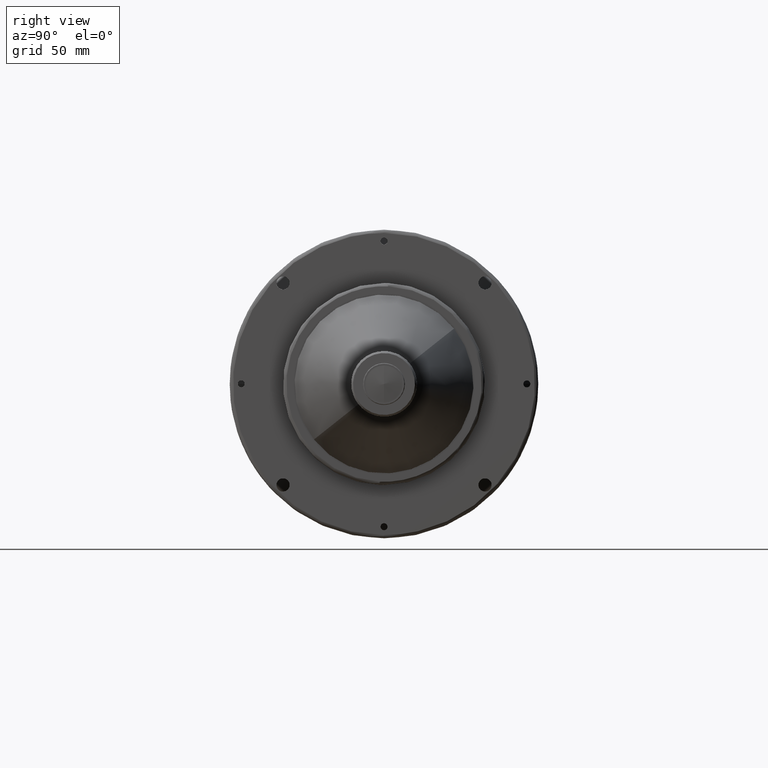
[diagram: clean part render]
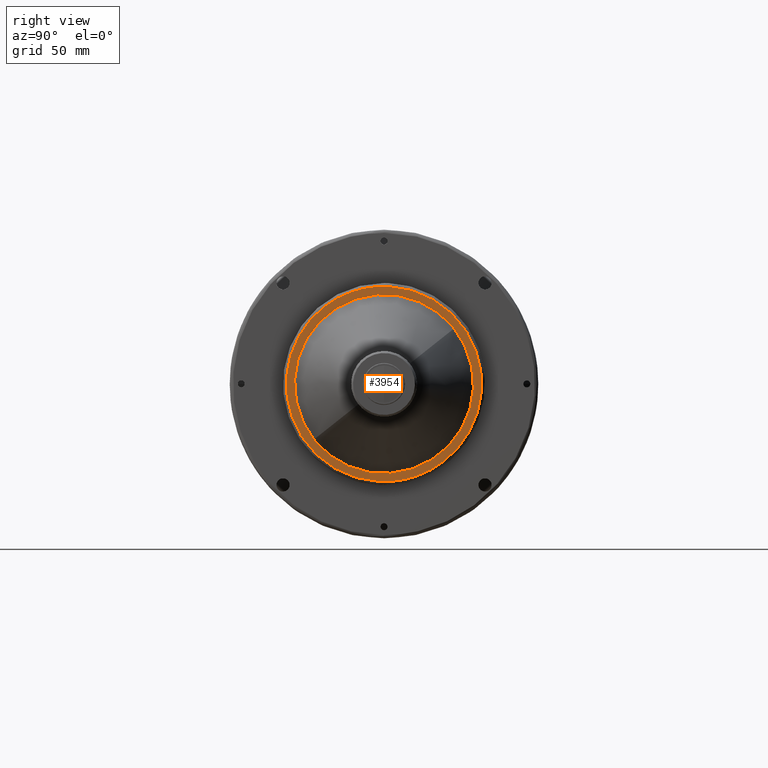
[diagram: same view with one face highlighted and labeled with its STEP entity id]
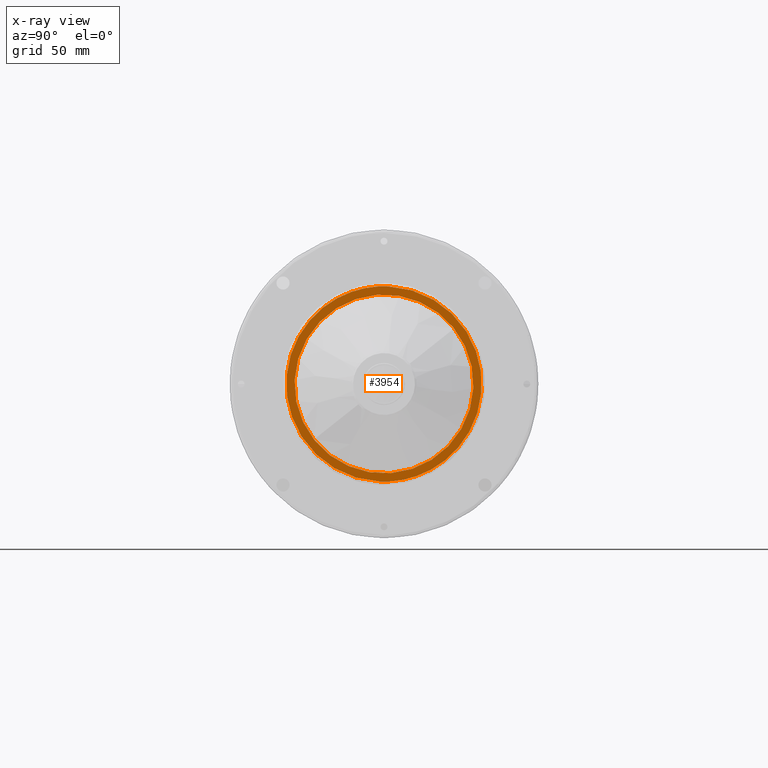
[diagram: x-ray of the same camera — body ghosted, the highlighted face saturated]
A machine part, right view. The second image highlights one B-rep face of the part: STEP entity #3954.
The next image is the same camera in x-ray: the body ghosted, the highlighted face saturated — about 0% of this face is hidden behind the body in this view.
In plain terms, the highlighted planar face has unit normal (-1, 0, 0).
Its self-contained STEP definition (entity closure, byte-faithful):
#320 = CARTESIAN_POINT ( 'NONE',  ( 173.0000000001910500, -2.632057328316807200, -59.44175529797291100 ) ) ;
#471 = CARTESIAN_POINT ( 'NONE',  ( 173.0000000001910800, 2.632057328316807200, 59.44175529797291100 ) ) ;
#521 = FACE_OUTER_BOUND ( 'NONE', #3306, .T. ) ;
#556 = DIRECTION ( 'NONE',  ( 0.0000000000000000000, -0.9990210976306547200, 0.04423625762699399200 ) ) ;
#977 = CARTESIAN_POINT ( 'NONE',  ( 173.0000000001911100, 2.632057328316807200, 59.44175529797291100 ) ) ;
#1001 = CARTESIAN_POINT ( 'NONE',  ( 173.0000000000000000, -2.262776110760173000E-041, 1.001948279422633600E-042 ) ) ;
#1178 = AXIS2_PLACEMENT_3D ( 'NONE', #1001, #4368, #556 ) ;
#1206 = EDGE_CURVE ( 'NONE', #2003, #5828, #1529, .T. ) ;
#1241 = CIRCLE ( 'NONE', #1178, 54.50000000000000000 ) ;
#1423 =( BOUNDED_CURVE ( )  B_SPLINE_CURVE ( 3, ( #977, #3871, #1919, #3849 ),
 .UNSPECIFIED., .F., .T. ) 
 B_SPLINE_CURVE_WITH_KNOTS ( ( 4, 4 ),
 ( 0.0000000000000000000, 1.000000000000000000 ),
 .UNSPECIFIED. ) 
 CURVE ( )  GEOMETRIC_REPRESENTATION_ITEM ( )  RATIONAL_B_SPLINE_CURVE ( ( 0.9565783021300869900, 0.3188594340433622000, 0.3188594340433622000, 0.9565783021300869900 ) ) 
 REPRESENTATION_ITEM ( '' )  );
#1529 =( BOUNDED_CURVE ( )  B_SPLINE_CURVE ( 3, ( #320, #3100, #1647, #4051 ),
 .UNSPECIFIED., .F., .T. ) 
 B_SPLINE_CURVE_WITH_KNOTS ( ( 4, 4 ),
 ( 0.0000000000000000000, 1.000000000000000000 ),
 .UNSPECIFIED. ) 
 CURVE ( )  GEOMETRIC_REPRESENTATION_ITEM ( )  RATIONAL_B_SPLINE_CURVE ( ( 0.9565783021300881000, 0.3188594340433625900, 0.3188594340433625900, 0.9565783021300881000 ) ) 
 REPRESENTATION_ITEM ( '' )  );
#1647 = CARTESIAN_POINT ( 'NONE',  ( 173.0000000003184700, -116.2514532910599700, 64.70586996801665700 ) ) ;
#1881 = DIRECTION ( 'NONE',  ( 0.0000000000000000000, -0.9990210976306547200, 0.04423625762699399200 ) ) ;
#1906 = DIRECTION ( 'NONE',  ( 1.000000000000000000, 3.179863029460577500E-017, -1.408030726512010900E-018 ) ) ;
#1919 = CARTESIAN_POINT ( 'NONE',  ( 173.0000000003184900, 116.2514532910599700, -64.70586996801667100 ) ) ;
#2003 = VERTEX_POINT ( 'NONE', #5884 ) ;
#2174 = CARTESIAN_POINT ( 'NONE',  ( 173.0000000000000000, -62.81869838948406200, -57.49141435598042400 ) ) ;
#2620 = DIRECTION ( 'NONE',  ( -1.000000000000000000, 0.0000000000000000000, 0.0000000000000000000 ) ) ;
#2677 = EDGE_CURVE ( 'NONE', #3559, #4542, #4050, .T. ) ;
#2682 = PLANE ( 'NONE',  #4102 ) ;
#2860 = EDGE_LOOP ( 'NONE', ( #3502, #5989 ) ) ;
#3100 = CARTESIAN_POINT ( 'NONE',  ( 173.0000000003184700, -121.5155679487871700, -54.17764065262596800 ) ) ;
#3306 = EDGE_LOOP ( 'NONE', ( #4689, #5016 ) ) ;
#3502 = ORIENTED_EDGE ( 'NONE', *, *, #3910, .F. ) ;
#3559 = VERTEX_POINT ( 'NONE', #5323 ) ;
#3849 = CARTESIAN_POINT ( 'NONE',  ( 173.0000000001911100, -2.632057328316807200, -59.44175529797291100 ) ) ;
#3871 = CARTESIAN_POINT ( 'NONE',  ( 173.0000000003184900, 121.5155679487871800, 54.17764065262597500 ) ) ;
#3910 = EDGE_CURVE ( 'NONE', #4542, #3559, #1241, .T. ) ;
#3954 = ADVANCED_FACE ( 'NONE', ( #5338, #521 ), #2682, .F. ) ;
#4050 = CIRCLE ( 'NONE', #5031, 54.50000000000000000 ) ;
#4051 = CARTESIAN_POINT ( 'NONE',  ( 173.0000000001910500, 2.632057328316807200, 59.44175529797291100 ) ) ;
#4102 = AXIS2_PLACEMENT_3D ( 'NONE', #2174, #2620, #5549 ) ;
#4368 = DIRECTION ( 'NONE',  ( 1.000000000000000000, 3.179863029460577500E-017, -1.408030726512010900E-018 ) ) ;
#4542 = VERTEX_POINT ( 'NONE', #5960 ) ;
#4689 = ORIENTED_EDGE ( 'NONE', *, *, #5862, .F. ) ;
#4857 = CARTESIAN_POINT ( 'NONE',  ( 173.0000000000000000, -2.262776110760173000E-041, 1.001948279422633600E-042 ) ) ;
#5016 = ORIENTED_EDGE ( 'NONE', *, *, #1206, .F. ) ;
#5031 = AXIS2_PLACEMENT_3D ( 'NONE', #4857, #1906, #1881 ) ;
#5323 = CARTESIAN_POINT ( 'NONE',  ( 173.0000000000000000, 54.44664982087068200, -2.410876040671166500 ) ) ;
#5338 = FACE_BOUND ( 'NONE', #2860, .T. ) ;
#5549 = DIRECTION ( 'NONE',  ( 0.0000000000000000000, 0.04423625762699399900, 0.9990210976306548300 ) ) ;
#5828 = VERTEX_POINT ( 'NONE', #471 ) ;
#5862 = EDGE_CURVE ( 'NONE', #5828, #2003, #1423, .T. ) ;
#5884 = CARTESIAN_POINT ( 'NONE',  ( 173.0000000001910800, -2.632057328316807200, -59.44175529797291100 ) ) ;
#5960 = CARTESIAN_POINT ( 'NONE',  ( 173.0000000000000000, -54.44664982087068200, 2.410876040671172700 ) ) ;
#5989 = ORIENTED_EDGE ( 'NONE', *, *, #2677, .F. ) ;